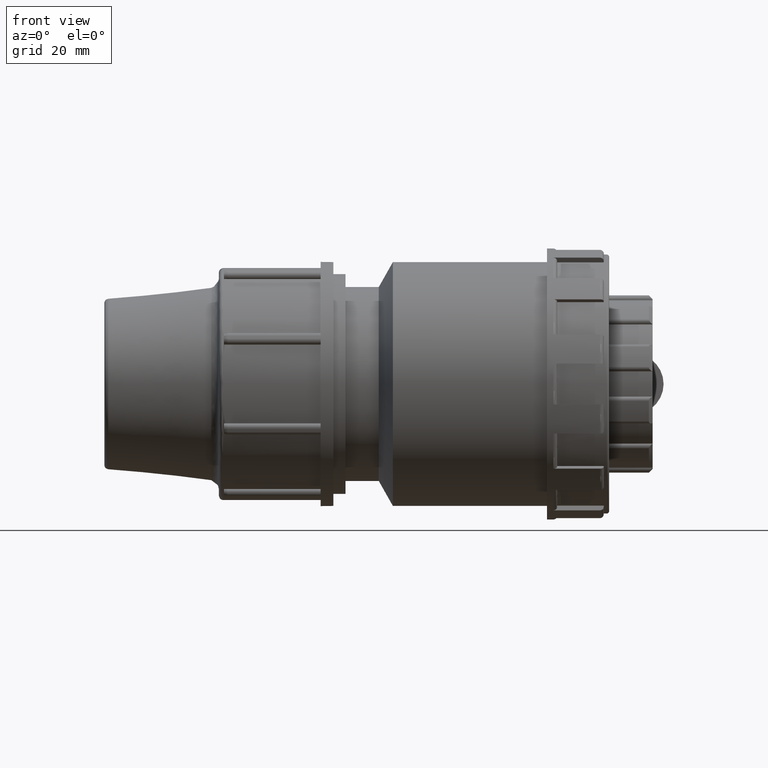
[diagram: clean part render]
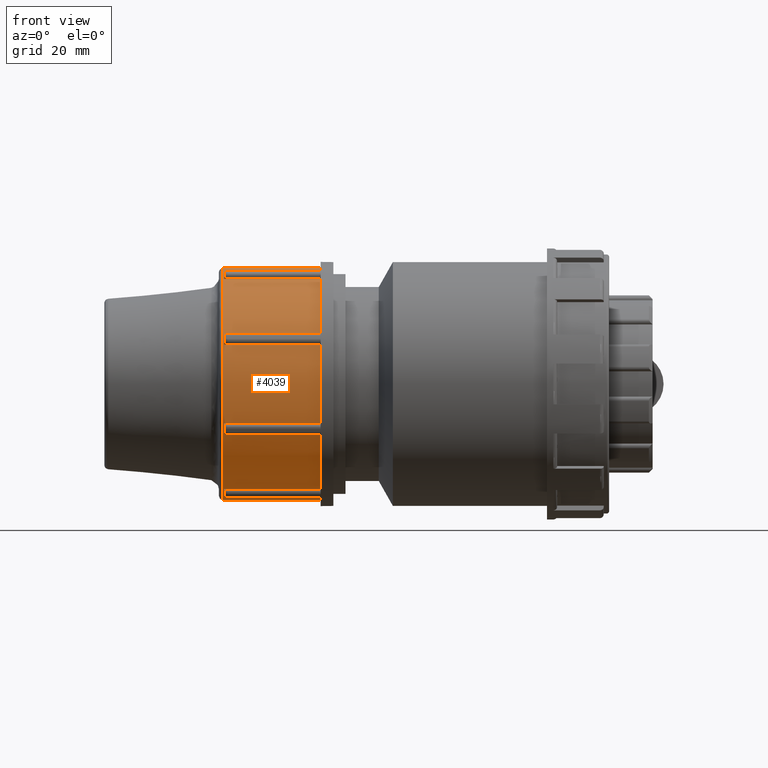
[diagram: same view with one face highlighted and labeled with its STEP entity id]
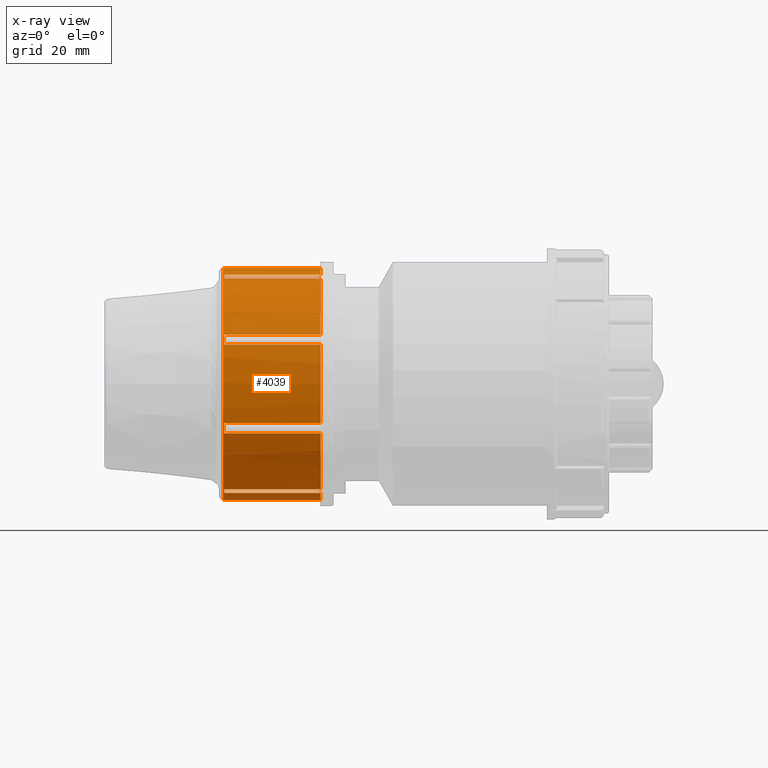
[diagram: x-ray of the same camera — body ghosted, the highlighted face saturated]
A machine part, front view. The second image highlights one B-rep face of the part: STEP entity #4039.
The next image is the same camera in x-ray: the body ghosted, the highlighted face saturated — about 0% of this face is hidden behind the body in this view.
In plain terms, the highlighted cylindrical surface (bore or boss wall) has radius 41.04 mm, axis along (1, 0, 0).
Its self-contained STEP definition (entity closure, byte-faithful):
#34=FACE_BOUND('',#668,.T.);
#210=B_SPLINE_CURVE_WITH_KNOTS('',3,(#6009,#6010,#6011,#6012,#6013,#6014),
 .UNSPECIFIED.,.F.,.F.,(4,2,4),(0.270252021531221,0.285666484748359,0.349287406534324),
 .UNSPECIFIED.);
#212=B_SPLINE_CURVE_WITH_KNOTS('',3,(#6058,#6059,#6060,#6061,#6062,#6063),
 .UNSPECIFIED.,.F.,.F.,(4,2,4),(0.,0.0556875629541235,0.0570756095935353),
 .UNSPECIFIED.);
#218=B_SPLINE_CURVE_WITH_KNOTS('',3,(#6144,#6145,#6146,#6147,#6148,#6149),
 .UNSPECIFIED.,.F.,.F.,(4,2,4),(0.270024967553399,0.28617237268081,0.348517857314572),
 .UNSPECIFIED.);
#220=B_SPLINE_CURVE_WITH_KNOTS('',3,(#6193,#6194,#6195,#6196,#6197,#6198),
 .UNSPECIFIED.,.F.,.F.,(4,2,4),(0.,0.0595941332321903,0.0612710042508019),
 .UNSPECIFIED.);
#226=B_SPLINE_CURVE_WITH_KNOTS('',3,(#6277,#6278,#6279,#6280,#6281,#6282),
 .UNSPECIFIED.,.F.,.F.,(4,2,4),(0.254289294767043,0.271257564767877,0.320130871396279),
 .UNSPECIFIED.);
#228=B_SPLINE_CURVE_WITH_KNOTS('',3,(#6326,#6327,#6328,#6329,#6330,#6331),
 .UNSPECIFIED.,.F.,.F.,(4,2,4),(0.,0.0556875629542089,0.0570756095936359),
 .UNSPECIFIED.);
#234=B_SPLINE_CURVE_WITH_KNOTS('',3,(#6412,#6413,#6414,#6415,#6416,#6417),
 .UNSPECIFIED.,.F.,.F.,(4,2,4),(0.270024967553478,0.286172372680958,0.348517857315129),
 .UNSPECIFIED.);
#236=B_SPLINE_CURVE_WITH_KNOTS('',3,(#6461,#6462,#6463,#6464,#6465,#6466),
 .UNSPECIFIED.,.F.,.F.,(4,2,4),(0.,0.059594133232262,0.0612710042508333),
 .UNSPECIFIED.);
#242=B_SPLINE_CURVE_WITH_KNOTS('',3,(#6545,#6546,#6547,#6548,#6549,#6550),
 .UNSPECIFIED.,.F.,.F.,(4,2,4),(0.254289294767165,0.271257564768007,0.320130871396367),
 .UNSPECIFIED.);
#244=B_SPLINE_CURVE_WITH_KNOTS('',3,(#6594,#6595,#6596,#6597,#6598,#6599),
 .UNSPECIFIED.,.F.,.F.,(4,2,4),(0.,0.0556875629541828,0.0570756095935919),
 .UNSPECIFIED.);
#250=B_SPLINE_CURVE_WITH_KNOTS('',3,(#6680,#6681,#6682,#6683,#6684,#6685),
 .UNSPECIFIED.,.F.,.F.,(4,2,4),(0.270024967553261,0.286172372680583,0.348517857314121),
 .UNSPECIFIED.);
#252=B_SPLINE_CURVE_WITH_KNOTS('',3,(#6729,#6730,#6731,#6732,#6733,#6734),
 .UNSPECIFIED.,.F.,.F.,(4,2,4),(0.,0.0595941332321728,0.0612710042508062),
 .UNSPECIFIED.);
#258=B_SPLINE_CURVE_WITH_KNOTS('',3,(#6813,#6814,#6815,#6816,#6817,#6818),
 .UNSPECIFIED.,.F.,.F.,(4,2,4),(0.254289294766208,0.271257564766852,0.320130871394691),
 .UNSPECIFIED.);
#260=B_SPLINE_CURVE_WITH_KNOTS('',3,(#6862,#6863,#6864,#6865,#6866,#6867),
 .UNSPECIFIED.,.F.,.F.,(4,2,4),(0.,0.0556869005654556,0.0570756308532231),
 .UNSPECIFIED.);
#265=B_SPLINE_CURVE_WITH_KNOTS('',3,(#6964,#6965,#6966,#6967,#6968,#6969),
 .UNSPECIFIED.,.F.,.F.,(4,2,4),(0.254053845148254,0.272263457028971,0.319621782903266),
 .UNSPECIFIED.);
#266=B_SPLINE_CURVE_WITH_KNOTS('',3,(#6977,#6978,#6979,#6980,#6981,#6982),
 .UNSPECIFIED.,.F.,.F.,(4,2,4),(0.,0.0407208175615254,0.0592135322917831),
 .UNSPECIFIED.);
#419=FACE_OUTER_BOUND('',#667,.T.);
#667=EDGE_LOOP('',(#2928));
#668=EDGE_LOOP('',(#2929,#2930,#2931,#2932,#2933,#2934,#2935,#2936,#2937,
#2938,#2939,#2940,#2941,#2942,#2943,#2944,#2945,#2946,#2947,#2948,#2949,
#2950,#2951,#2952,#2953,#2954,#2955,#2956,#2957,#2958,#2959,#2960,#2961,
#2962,#2963,#2964,#2965,#2966,#2967,#2968,#2969,#2970,#2971,#2972,#2973,
#2974,#2975,#2976));
#889=LINE('',#6018,#1117);
#895=LINE('',#6153,#1123);
#901=LINE('',#6286,#1129);
#907=LINE('',#6421,#1135);
#913=LINE('',#6554,#1141);
#919=LINE('',#6689,#1147);
#925=LINE('',#6822,#1153);
#928=LINE('',#6913,#1156);
#930=LINE('',#6920,#1158);
#932=LINE('',#6927,#1160);
#934=LINE('',#6934,#1162);
#936=LINE('',#6941,#1164);
#938=LINE('',#6948,#1166);
#940=LINE('',#6955,#1168);
#942=LINE('',#6971,#1170);
#943=LINE('',#6975,#1171);
#1117=VECTOR('',#4737,33.6046665047877);
#1123=VECTOR('',#4767,33.6046665048017);
#1129=VECTOR('',#4797,33.6046665048071);
#1135=VECTOR('',#4827,33.6046665048018);
#1141=VECTOR('',#4857,33.6046665048071);
#1147=VECTOR('',#4887,33.6046665048017);
#1153=VECTOR('',#4917,33.6046665048071);
#1156=VECTOR('',#4938,33.6046665611855);
#1158=VECTOR('',#4948,33.6046665611782);
#1160=VECTOR('',#4958,33.6046665611855);
#1162=VECTOR('',#4968,33.6046665611782);
#1164=VECTOR('',#4978,33.6046665611855);
#1166=VECTOR('',#4988,33.6046665611782);
#1168=VECTOR('',#4998,33.6046665611855);
#1170=VECTOR('',#5010,33.6046665048419);
#1171=VECTOR('',#5013,33.6046665612469);
#1347=CIRCLE('',#4235,41.04);
#1354=CIRCLE('',#4247,41.04);
#1361=CIRCLE('',#4259,41.04);
#1368=CIRCLE('',#4271,41.04);
#1375=CIRCLE('',#4283,41.04);
#1382=CIRCLE('',#4295,41.04);
#1389=CIRCLE('',#4307,41.04);
#1391=CIRCLE('',#4312,41.04);
#1393=CIRCLE('',#4316,41.04);
#1395=CIRCLE('',#4320,41.04);
#1397=CIRCLE('',#4324,41.04);
#1399=CIRCLE('',#4328,41.04);
#1401=CIRCLE('',#4332,41.04);
#1403=CIRCLE('',#4336,41.04);
#1405=CIRCLE('',#4339,41.04);
#1406=CIRCLE('',#4340,41.04);
#1407=CIRCLE('',#4341,41.04);
#1612=VERTEX_POINT('',#5984);
#1614=VERTEX_POINT('',#6004);
#1615=VERTEX_POINT('',#6016);
#1617=VERTEX_POINT('',#6044);
#1618=VERTEX_POINT('',#6057);
#1624=VERTEX_POINT('',#6084);
#1629=VERTEX_POINT('',#6139);
#1630=VERTEX_POINT('',#6151);
#1632=VERTEX_POINT('',#6179);
#1633=VERTEX_POINT('',#6192);
#1639=VERTEX_POINT('',#6219);
#1644=VERTEX_POINT('',#6272);
#1645=VERTEX_POINT('',#6284);
#1647=VERTEX_POINT('',#6312);
#1648=VERTEX_POINT('',#6325);
#1654=VERTEX_POINT('',#6352);
#1659=VERTEX_POINT('',#6407);
#1660=VERTEX_POINT('',#6419);
#1662=VERTEX_POINT('',#6447);
#1663=VERTEX_POINT('',#6460);
#1669=VERTEX_POINT('',#6487);
#1674=VERTEX_POINT('',#6540);
#1675=VERTEX_POINT('',#6552);
#1677=VERTEX_POINT('',#6580);
#1678=VERTEX_POINT('',#6593);
#1684=VERTEX_POINT('',#6620);
#1689=VERTEX_POINT('',#6675);
#1690=VERTEX_POINT('',#6687);
#1692=VERTEX_POINT('',#6715);
#1693=VERTEX_POINT('',#6728);
#1699=VERTEX_POINT('',#6755);
#1704=VERTEX_POINT('',#6808);
#1705=VERTEX_POINT('',#6820);
#1707=VERTEX_POINT('',#6848);
#1708=VERTEX_POINT('',#6861);
#1714=VERTEX_POINT('',#6888);
#1716=VERTEX_POINT('',#6912);
#1717=VERTEX_POINT('',#6919);
#1718=VERTEX_POINT('',#6926);
#1719=VERTEX_POINT('',#6933);
#1720=VERTEX_POINT('',#6940);
#1721=VERTEX_POINT('',#6947);
#1722=VERTEX_POINT('',#6954);
#1723=VERTEX_POINT('',#6961);
#1724=VERTEX_POINT('',#6963);
#1725=VERTEX_POINT('',#6970);
#1726=VERTEX_POINT('',#6972);
#1727=VERTEX_POINT('',#6974);
#1728=VERTEX_POINT('',#6976);
#2028=EDGE_CURVE('',#1614,#1612,#210,.F.);
#2030=EDGE_CURVE('',#1614,#1615,#889,.T.);
#2032=EDGE_CURVE('',#1618,#1617,#212,.T.);
#2041=EDGE_CURVE('',#1617,#1624,#1347,.T.);
#2049=EDGE_CURVE('',#1629,#1624,#218,.F.);
#2051=EDGE_CURVE('',#1629,#1630,#895,.T.);
#2053=EDGE_CURVE('',#1633,#1632,#220,.T.);
#2062=EDGE_CURVE('',#1632,#1639,#1354,.T.);
#2070=EDGE_CURVE('',#1644,#1639,#226,.F.);
#2072=EDGE_CURVE('',#1644,#1645,#901,.T.);
#2074=EDGE_CURVE('',#1648,#1647,#228,.T.);
#2083=EDGE_CURVE('',#1647,#1654,#1361,.T.);
#2091=EDGE_CURVE('',#1659,#1654,#234,.F.);
#2093=EDGE_CURVE('',#1659,#1660,#907,.T.);
#2095=EDGE_CURVE('',#1663,#1662,#236,.T.);
#2104=EDGE_CURVE('',#1662,#1669,#1368,.T.);
#2112=EDGE_CURVE('',#1674,#1669,#242,.F.);
#2114=EDGE_CURVE('',#1674,#1675,#913,.T.);
#2116=EDGE_CURVE('',#1678,#1677,#244,.T.);
#2125=EDGE_CURVE('',#1677,#1684,#1375,.T.);
#2133=EDGE_CURVE('',#1689,#1684,#250,.F.);
#2135=EDGE_CURVE('',#1689,#1690,#919,.T.);
#2137=EDGE_CURVE('',#1693,#1692,#252,.T.);
#2146=EDGE_CURVE('',#1692,#1699,#1382,.T.);
#2154=EDGE_CURVE('',#1704,#1699,#258,.F.);
#2156=EDGE_CURVE('',#1704,#1705,#925,.T.);
#2158=EDGE_CURVE('',#1708,#1707,#260,.T.);
#2167=EDGE_CURVE('',#1707,#1714,#1389,.T.);
#2170=EDGE_CURVE('',#1618,#1716,#928,.T.);
#2172=EDGE_CURVE('',#1615,#1716,#1391,.T.);
#2174=EDGE_CURVE('',#1633,#1717,#930,.T.);
#2176=EDGE_CURVE('',#1630,#1717,#1393,.T.);
#2178=EDGE_CURVE('',#1648,#1718,#932,.T.);
#2180=EDGE_CURVE('',#1645,#1718,#1395,.T.);
#2182=EDGE_CURVE('',#1663,#1719,#934,.T.);
#2184=EDGE_CURVE('',#1660,#1719,#1397,.T.);
#2186=EDGE_CURVE('',#1678,#1720,#936,.T.);
#2188=EDGE_CURVE('',#1675,#1720,#1399,.T.);
#2190=EDGE_CURVE('',#1693,#1721,#938,.T.);
#2192=EDGE_CURVE('',#1690,#1721,#1401,.T.);
#2194=EDGE_CURVE('',#1708,#1722,#940,.T.);
#2196=EDGE_CURVE('',#1705,#1722,#1403,.T.);
#2198=EDGE_CURVE('',#1723,#1723,#1405,.T.);
#2199=EDGE_CURVE('',#1724,#1714,#265,.F.);
#2200=EDGE_CURVE('',#1724,#1725,#942,.T.);
#2201=EDGE_CURVE('',#1725,#1726,#1406,.T.);
#2202=EDGE_CURVE('',#1727,#1726,#943,.T.);
#2203=EDGE_CURVE('',#1727,#1728,#266,.T.);
#2204=EDGE_CURVE('',#1728,#1612,#1407,.T.);
#2928=ORIENTED_EDGE('',*,*,#2198,.F.);
#2929=ORIENTED_EDGE('',*,*,#2041,.T.);
#2930=ORIENTED_EDGE('',*,*,#2049,.F.);
#2931=ORIENTED_EDGE('',*,*,#2051,.T.);
#2932=ORIENTED_EDGE('',*,*,#2176,.T.);
#2933=ORIENTED_EDGE('',*,*,#2174,.F.);
#2934=ORIENTED_EDGE('',*,*,#2053,.T.);
#2935=ORIENTED_EDGE('',*,*,#2062,.T.);
#2936=ORIENTED_EDGE('',*,*,#2070,.F.);
#2937=ORIENTED_EDGE('',*,*,#2072,.T.);
#2938=ORIENTED_EDGE('',*,*,#2180,.T.);
#2939=ORIENTED_EDGE('',*,*,#2178,.F.);
#2940=ORIENTED_EDGE('',*,*,#2074,.T.);
#2941=ORIENTED_EDGE('',*,*,#2083,.T.);
#2942=ORIENTED_EDGE('',*,*,#2091,.F.);
#2943=ORIENTED_EDGE('',*,*,#2093,.T.);
#2944=ORIENTED_EDGE('',*,*,#2184,.T.);
#2945=ORIENTED_EDGE('',*,*,#2182,.F.);
#2946=ORIENTED_EDGE('',*,*,#2095,.T.);
#2947=ORIENTED_EDGE('',*,*,#2104,.T.);
#2948=ORIENTED_EDGE('',*,*,#2112,.F.);
#2949=ORIENTED_EDGE('',*,*,#2114,.T.);
#2950=ORIENTED_EDGE('',*,*,#2188,.T.);
#2951=ORIENTED_EDGE('',*,*,#2186,.F.);
#2952=ORIENTED_EDGE('',*,*,#2116,.T.);
#2953=ORIENTED_EDGE('',*,*,#2125,.T.);
#2954=ORIENTED_EDGE('',*,*,#2133,.F.);
#2955=ORIENTED_EDGE('',*,*,#2135,.T.);
#2956=ORIENTED_EDGE('',*,*,#2192,.T.);
#2957=ORIENTED_EDGE('',*,*,#2190,.F.);
#2958=ORIENTED_EDGE('',*,*,#2137,.T.);
#2959=ORIENTED_EDGE('',*,*,#2146,.T.);
#2960=ORIENTED_EDGE('',*,*,#2154,.F.);
#2961=ORIENTED_EDGE('',*,*,#2156,.T.);
#2962=ORIENTED_EDGE('',*,*,#2196,.T.);
#2963=ORIENTED_EDGE('',*,*,#2194,.F.);
#2964=ORIENTED_EDGE('',*,*,#2158,.T.);
#2965=ORIENTED_EDGE('',*,*,#2167,.T.);
#2966=ORIENTED_EDGE('',*,*,#2199,.F.);
#2967=ORIENTED_EDGE('',*,*,#2200,.T.);
#2968=ORIENTED_EDGE('',*,*,#2201,.T.);
#2969=ORIENTED_EDGE('',*,*,#2202,.F.);
#2970=ORIENTED_EDGE('',*,*,#2203,.T.);
#2971=ORIENTED_EDGE('',*,*,#2204,.T.);
#2972=ORIENTED_EDGE('',*,*,#2028,.F.);
#2973=ORIENTED_EDGE('',*,*,#2030,.T.);
#2974=ORIENTED_EDGE('',*,*,#2172,.T.);
#2975=ORIENTED_EDGE('',*,*,#2170,.F.);
#2976=ORIENTED_EDGE('',*,*,#2032,.T.);
#3916=CYLINDRICAL_SURFACE('',#4338,41.04);
#4039=ADVANCED_FACE('',(#419,#34),#3916,.T.);
#4235=AXIS2_PLACEMENT_3D('',#6099,#4750,#4751);
#4247=AXIS2_PLACEMENT_3D('',#6232,#4780,#4781);
#4259=AXIS2_PLACEMENT_3D('',#6367,#4810,#4811);
#4271=AXIS2_PLACEMENT_3D('',#6500,#4840,#4841);
#4283=AXIS2_PLACEMENT_3D('',#6635,#4870,#4871);
#4295=AXIS2_PLACEMENT_3D('',#6768,#4900,#4901);
#4307=AXIS2_PLACEMENT_3D('',#6903,#4930,#4931);
#4312=AXIS2_PLACEMENT_3D('',#6916,#4942,#4943);
#4316=AXIS2_PLACEMENT_3D('',#6923,#4952,#4953);
#4320=AXIS2_PLACEMENT_3D('',#6930,#4962,#4963);
#4324=AXIS2_PLACEMENT_3D('',#6937,#4972,#4973);
#4328=AXIS2_PLACEMENT_3D('',#6944,#4982,#4983);
#4332=AXIS2_PLACEMENT_3D('',#6951,#4992,#4993);
#4336=AXIS2_PLACEMENT_3D('',#6958,#5002,#5003);
#4338=AXIS2_PLACEMENT_3D('',#6960,#5006,#5007);
#4339=AXIS2_PLACEMENT_3D('',#6962,#5008,#5009);
#4340=AXIS2_PLACEMENT_3D('',#6973,#5011,#5012);
#4341=AXIS2_PLACEMENT_3D('',#6983,#5014,#5015);
#4737=DIRECTION('',(1.,0.,0.));
#4750=DIRECTION('center_axis',(-1.,0.,0.));
#4751=DIRECTION('ref_axis',(0.,0.,-1.));
#4767=DIRECTION('',(1.,0.,0.));
#4780=DIRECTION('center_axis',(-1.,0.,0.));
#4781=DIRECTION('ref_axis',(0.,0.,-1.));
#4797=DIRECTION('',(1.,0.,0.));
#4810=DIRECTION('center_axis',(-1.,0.,0.));
#4811=DIRECTION('ref_axis',(0.,0.,-1.));
#4827=DIRECTION('',(1.,0.,0.));
#4840=DIRECTION('center_axis',(-1.,0.,0.));
#4841=DIRECTION('ref_axis',(0.,0.,-1.));
#4857=DIRECTION('',(1.,0.,0.));
#4870=DIRECTION('center_axis',(-1.,0.,0.));
#4871=DIRECTION('ref_axis',(0.,0.,-1.));
#4887=DIRECTION('',(1.,0.,0.));
#4900=DIRECTION('center_axis',(-1.,0.,0.));
#4901=DIRECTION('ref_axis',(0.,0.,-1.));
#4917=DIRECTION('',(1.,0.,0.));
#4930=DIRECTION('center_axis',(-1.,0.,0.));
#4931=DIRECTION('ref_axis',(0.,0.,-1.));
#4938=DIRECTION('',(1.,0.,0.));
#4942=DIRECTION('center_axis',(-1.,0.,0.));
#4943=DIRECTION('ref_axis',(0.,-0.707106781186548,-0.707106781186547));
#4948=DIRECTION('',(1.,0.,0.));
#4952=DIRECTION('center_axis',(-1.,0.,0.));
#4953=DIRECTION('ref_axis',(0.,-1.,2.16417743591648E-16));
#4958=DIRECTION('',(1.,0.,0.));
#4962=DIRECTION('center_axis',(-1.,0.,0.));
#4963=DIRECTION('ref_axis',(0.,-0.707106781186547,0.707106781186548));
#4968=DIRECTION('',(1.,0.,0.));
#4972=DIRECTION('center_axis',(-1.,0.,0.));
#4973=DIRECTION('ref_axis',(0.,2.16417743591648E-16,1.));
#4978=DIRECTION('',(1.,0.,0.));
#4982=DIRECTION('center_axis',(-1.,0.,0.));
#4983=DIRECTION('ref_axis',(0.,0.707106781186548,0.707106781186547));
#4988=DIRECTION('',(1.,0.,0.));
#4992=DIRECTION('center_axis',(-1.,0.,0.));
#4993=DIRECTION('ref_axis',(0.,1.,0.));
#4998=DIRECTION('',(1.,0.,0.));
#5002=DIRECTION('center_axis',(-1.,0.,0.));
#5003=DIRECTION('ref_axis',(0.,0.707106781186547,-0.707106781186548));
#5006=DIRECTION('center_axis',(1.,0.,0.));
#5007=DIRECTION('ref_axis',(0.,0.,-1.));
#5008=DIRECTION('center_axis',(-1.,0.,0.));
#5009=DIRECTION('ref_axis',(0.,0.940721029240064,0.339181286549708));
#5010=DIRECTION('',(1.,0.,0.));
#5011=DIRECTION('center_axis',(-1.,0.,0.));
#5012=DIRECTION('ref_axis',(0.,0.,-1.));
#5013=DIRECTION('',(1.,0.,0.));
#5014=DIRECTION('center_axis',(-1.,0.,0.));
#5015=DIRECTION('ref_axis',(0.,0.,-1.));
#5984=CARTESIAN_POINT('',(-87.0333333333334,37.1586650213684,-17.4216880304331));
#6004=CARTESIAN_POINT('',(-86.4379998381211,37.1423329809637,-17.4564801927302));
#6009=CARTESIAN_POINT('Ctrl Pts',(-87.0333333333334,37.1586650213684,-17.4216880304331));
#6010=CARTESIAN_POINT('Ctrl Pts',(-86.9921485865194,37.1559985110736,-17.4273754220708));
#6011=CARTESIAN_POINT('Ctrl Pts',(-86.9521998777933,37.1538075171609,-17.4320453540696));
#6012=CARTESIAN_POINT('Ctrl Pts',(-86.7549185541998,37.1445019033375,-17.4518735159925));
#6013=CARTESIAN_POINT('Ctrl Pts',(-86.599493453676,37.1423329810739,-17.4564801928404));
#6014=CARTESIAN_POINT('Ctrl Pts',(-86.4379998374639,37.1423329810739,-17.4564801928404));
#6016=CARTESIAN_POINT('',(-52.8333333333334,37.1423329810739,-17.4564801928404));
#6018=CARTESIAN_POINT('',(-88.8333333333334,37.1423329810739,-17.4564801928404));
#6044=CARTESIAN_POINT('',(-87.0333333333334,17.4216880304331,-37.1586650213684));
#6057=CARTESIAN_POINT('',(-86.4379998945188,17.4564801832725,-37.1423329715059));
#6058=CARTESIAN_POINT('Ctrl Pts',(-86.4379998945188,17.4564801928404,-37.1423329810739));
#6059=CARTESIAN_POINT('Ctrl Pts',(-86.6236251043659,17.4564801915929,-37.1423329816602));
#6060=CARTESIAN_POINT('Ctrl Pts',(-86.8176814308472,17.4504284645355,-37.1451883224252));
#6061=CARTESIAN_POINT('Ctrl Pts',(-87.0232232619913,17.4230713159363,-37.1580164494249));
#6062=CARTESIAN_POINT('Ctrl Pts',(-87.0282597988944,17.4223886582037,-37.1583365349053));
#6063=CARTESIAN_POINT('Ctrl Pts',(-87.0333333333333,17.4216880304331,-37.1586650213684));
#6084=CARTESIAN_POINT('',(-87.0333333333334,13.9561502704132,-38.5941377624847));
#6099=CARTESIAN_POINT('Origin',(-87.0333333333334,0.,0.));
#6139=CARTESIAN_POINT('',(-86.4379998381351,13.92,-38.607191039853));
#6144=CARTESIAN_POINT('Ctrl Pts',(-87.0333333333334,13.9561502704132,-38.5941377624847));
#6145=CARTESIAN_POINT('Ctrl Pts',(-86.9898702827425,13.9499163941196,-38.5963920145386));
#6146=CARTESIAN_POINT('Ctrl Pts',(-86.9477223449924,13.9448494438052,-38.5982226728267));
#6147=CARTESIAN_POINT('Ctrl Pts',(-86.7505363448343,13.9246541690976,-38.6055164081321));
#6148=CARTESIAN_POINT('Ctrl Pts',(-86.5971701580888,13.92,-38.6071910400122));
#6149=CARTESIAN_POINT('Ctrl Pts',(-86.4379998374639,13.92,-38.6071910400122));
#6151=CARTESIAN_POINT('',(-52.8333333333334,13.92,-38.6071910400122));
#6153=CARTESIAN_POINT('',(-88.8333333333334,13.92,-38.6071910400122));
#6179=CARTESIAN_POINT('',(-87.0333333333334,-13.9561502704132,-38.5941377624847));
#6192=CARTESIAN_POINT('',(-86.4379998945115,-13.92,-38.6071910264828));
#6193=CARTESIAN_POINT('Ctrl Pts',(-86.4379998945115,-13.92,-38.6071910400122));
#6194=CARTESIAN_POINT('Ctrl Pts',(-86.6366470052855,-13.9200000013875,-38.607191039512));
#6195=CARTESIAN_POINT('Ctrl Pts',(-86.8239429421501,-13.927250417033,-38.6045864544689));
#6196=CARTESIAN_POINT('Ctrl Pts',(-87.0223415126307,-13.9545894987774,-38.5947021306503));
#6197=CARTESIAN_POINT('Ctrl Pts',(-87.0278157564595,-13.9553588880503,-38.5944239368059));
#6198=CARTESIAN_POINT('Ctrl Pts',(-87.0333333333334,-13.9561502704132,-38.5941377624847));
#6219=CARTESIAN_POINT('',(-87.0333333333334,-17.4216880304331,-37.1586650213684));
#6232=CARTESIAN_POINT('Origin',(-87.0333333333334,0.,0.));
#6272=CARTESIAN_POINT('',(-86.4379998381405,-17.456480192727,-37.1423329809605));
#6277=CARTESIAN_POINT('Ctrl Pts',(-87.0333333333335,-17.4216880304331,-37.1586650213684));
#6278=CARTESIAN_POINT('Ctrl Pts',(-86.9786831767403,-17.4292349226117,-37.1551266918547));
#6279=CARTESIAN_POINT('Ctrl Pts',(-86.9257901003047,-17.4350482134609,-37.1523985606639));
#6280=CARTESIAN_POINT('Ctrl Pts',(-86.7291644151997,-17.4526164169504,-37.1441514607129));
#6281=CARTESIAN_POINT('Ctrl Pts',(-86.5858946637742,-17.4564801928404,-37.1423329810739));
#6282=CARTESIAN_POINT('Ctrl Pts',(-86.4379998374639,-17.4564801928404,-37.1423329810739));
#6284=CARTESIAN_POINT('',(-52.8333333333334,-17.4564801928404,-37.1423329810739));
#6286=CARTESIAN_POINT('',(-88.8333333333334,-17.4564801928404,-37.1423329810739));
#6312=CARTESIAN_POINT('',(-87.0333333333334,-37.1586650213684,-17.4216880304331));
#6325=CARTESIAN_POINT('',(-86.4379998945188,-37.1423329715059,-17.4564801832725));
#6326=CARTESIAN_POINT('Ctrl Pts',(-86.4379998945188,-37.1423329810739,-17.4564801928404));
#6327=CARTESIAN_POINT('Ctrl Pts',(-86.6236251043662,-37.1423329816602,-17.4564801915929));
#6328=CARTESIAN_POINT('Ctrl Pts',(-86.8176814308473,-37.1451883224252,-17.4504284645355));
#6329=CARTESIAN_POINT('Ctrl Pts',(-87.0232232619912,-37.1580164494249,-17.4230713159363));
#6330=CARTESIAN_POINT('Ctrl Pts',(-87.0282597988944,-37.1583365349053,-17.4223886582037));
#6331=CARTESIAN_POINT('Ctrl Pts',(-87.0333333333334,-37.1586650213684,-17.4216880304331));
#6352=CARTESIAN_POINT('',(-87.0333333333334,-38.5941377624847,-13.9561502704132));
#6367=CARTESIAN_POINT('Origin',(-87.0333333333334,0.,0.));
#6407=CARTESIAN_POINT('',(-86.4379998381351,-38.607191039853,-13.92));
#6412=CARTESIAN_POINT('Ctrl Pts',(-87.0333333333334,-38.5941377624847,-13.9561502704132));
#6413=CARTESIAN_POINT('Ctrl Pts',(-86.9898702827425,-38.5963920145386,-13.9499163941196));
#6414=CARTESIAN_POINT('Ctrl Pts',(-86.9477223449925,-38.5982226728267,-13.9448494438052));
#6415=CARTESIAN_POINT('Ctrl Pts',(-86.7505363448344,-38.6055164081321,-13.9246541690976));
#6416=CARTESIAN_POINT('Ctrl Pts',(-86.5971701580889,-38.6071910400122,-13.92));
#6417=CARTESIAN_POINT('Ctrl Pts',(-86.4379998374639,-38.6071910400122,-13.92));
#6419=CARTESIAN_POINT('',(-52.8333333333334,-38.6071910400122,-13.92));
#6421=CARTESIAN_POINT('',(-88.8333333333334,-38.6071910400122,-13.92));
#6447=CARTESIAN_POINT('',(-87.0333333333334,-38.5941377624847,13.9561502704132));
#6460=CARTESIAN_POINT('',(-86.4379998945115,-38.6071910264828,13.92));
#6461=CARTESIAN_POINT('Ctrl Pts',(-86.4379998945115,-38.6071910400122,13.92));
#6462=CARTESIAN_POINT('Ctrl Pts',(-86.6366470052857,-38.607191039512,13.9200000013875));
#6463=CARTESIAN_POINT('Ctrl Pts',(-86.8239429421504,-38.6045864544689,13.927250417033));
#6464=CARTESIAN_POINT('Ctrl Pts',(-87.022341512631,-38.5947021306503,13.9545894987774));
#6465=CARTESIAN_POINT('Ctrl Pts',(-87.0278157564596,-38.5944239368059,13.9553588880503));
#6466=CARTESIAN_POINT('Ctrl Pts',(-87.0333333333334,-38.5941377624847,13.9561502704132));
#6487=CARTESIAN_POINT('',(-87.0333333333334,-37.1586650213684,17.4216880304331));
#6500=CARTESIAN_POINT('Origin',(-87.0333333333334,0.,0.));
#6540=CARTESIAN_POINT('',(-86.4379998381404,-37.1423329809605,17.456480192727));
#6545=CARTESIAN_POINT('Ctrl Pts',(-87.0333333333334,-37.1586650213684,17.4216880304331));
#6546=CARTESIAN_POINT('Ctrl Pts',(-86.9786831767403,-37.1551266918547,17.4292349226117));
#6547=CARTESIAN_POINT('Ctrl Pts',(-86.9257901003046,-37.1523985606639,17.4350482134609));
#6548=CARTESIAN_POINT('Ctrl Pts',(-86.7291644151996,-37.1441514607129,17.4526164169504));
#6549=CARTESIAN_POINT('Ctrl Pts',(-86.5858946637742,-37.1423329810739,17.4564801928404));
#6550=CARTESIAN_POINT('Ctrl Pts',(-86.4379998374638,-37.1423329810739,17.4564801928404));
#6552=CARTESIAN_POINT('',(-52.8333333333334,-37.1423329810739,17.4564801928404));
#6554=CARTESIAN_POINT('',(-88.8333333333334,-37.1423329810739,17.4564801928404));
#6580=CARTESIAN_POINT('',(-87.0333333333334,-17.4216880304331,37.1586650213684));
#6593=CARTESIAN_POINT('',(-86.4379998945188,-17.4564801832725,37.1423329715059));
#6594=CARTESIAN_POINT('Ctrl Pts',(-86.4379998945188,-17.4564801928404,37.1423329810739));
#6595=CARTESIAN_POINT('Ctrl Pts',(-86.6236251043661,-17.4564801915929,37.1423329816602));
#6596=CARTESIAN_POINT('Ctrl Pts',(-86.8176814308473,-17.4504284645355,37.1451883224252));
#6597=CARTESIAN_POINT('Ctrl Pts',(-87.0232232619913,-17.4230713159363,37.1580164494249));
#6598=CARTESIAN_POINT('Ctrl Pts',(-87.0282597988945,-17.4223886582037,37.1583365349053));
#6599=CARTESIAN_POINT('Ctrl Pts',(-87.0333333333334,-17.4216880304331,37.1586650213684));
#6620=CARTESIAN_POINT('',(-87.0333333333334,-13.9561502704132,38.5941377624847));
#6635=CARTESIAN_POINT('Origin',(-87.0333333333334,0.,0.));
#6675=CARTESIAN_POINT('',(-86.4379998381351,-13.92,38.607191039853));
#6680=CARTESIAN_POINT('Ctrl Pts',(-87.0333333333334,-13.9561502704132,38.5941377624847));
#6681=CARTESIAN_POINT('Ctrl Pts',(-86.9898702827426,-13.9499163941196,38.5963920145386));
#6682=CARTESIAN_POINT('Ctrl Pts',(-86.9477223449926,-13.9448494438052,38.5982226728266));
#6683=CARTESIAN_POINT('Ctrl Pts',(-86.7505363448345,-13.9246541690976,38.6055164081321));
#6684=CARTESIAN_POINT('Ctrl Pts',(-86.5971701580889,-13.92,38.6071910400122));
#6685=CARTESIAN_POINT('Ctrl Pts',(-86.4379998374639,-13.92,38.6071910400122));
#6687=CARTESIAN_POINT('',(-52.8333333333334,-13.92,38.6071910400122));
#6689=CARTESIAN_POINT('',(-88.8333333333334,-13.92,38.6071910400122));
#6715=CARTESIAN_POINT('',(-87.0333333333334,13.9561502704132,38.5941377624847));
#6728=CARTESIAN_POINT('',(-86.4379998945115,13.92,38.6071910264828));
#6729=CARTESIAN_POINT('Ctrl Pts',(-86.4379998945115,13.92,38.6071910400122));
#6730=CARTESIAN_POINT('Ctrl Pts',(-86.6366470052854,13.9200000013875,38.607191039512));
#6731=CARTESIAN_POINT('Ctrl Pts',(-86.82394294215,13.927250417033,38.6045864544689));
#6732=CARTESIAN_POINT('Ctrl Pts',(-87.0223415126306,13.9545894987773,38.5947021306503));
#6733=CARTESIAN_POINT('Ctrl Pts',(-87.0278157564594,13.9553588880503,38.5944239368059));
#6734=CARTESIAN_POINT('Ctrl Pts',(-87.0333333333334,13.9561502704131,38.5941377624847));
#6755=CARTESIAN_POINT('',(-87.0333333333334,17.4216880304331,37.1586650213684));
#6768=CARTESIAN_POINT('Origin',(-87.0333333333334,0.,0.));
#6808=CARTESIAN_POINT('',(-86.4379998381404,17.456480192727,37.1423329809605));
#6813=CARTESIAN_POINT('Ctrl Pts',(-87.0333333333334,17.4216880304331,37.1586650213684));
#6814=CARTESIAN_POINT('Ctrl Pts',(-86.9786831767403,17.4292349226117,37.1551266918547));
#6815=CARTESIAN_POINT('Ctrl Pts',(-86.9257901003047,17.4350482134609,37.1523985606639));
#6816=CARTESIAN_POINT('Ctrl Pts',(-86.7291644151997,17.4526164169504,37.1441514607129));
#6817=CARTESIAN_POINT('Ctrl Pts',(-86.5858946637742,17.4564801928404,37.1423329810739));
#6818=CARTESIAN_POINT('Ctrl Pts',(-86.4379998374639,17.4564801928404,37.1423329810739));
#6820=CARTESIAN_POINT('',(-52.8333333333334,17.4564801928404,37.1423329810739));
#6822=CARTESIAN_POINT('',(-88.8333333333334,17.4564801928404,37.1423329810739));
#6848=CARTESIAN_POINT('',(-87.0333333333334,37.1586650213684,17.4216880304331));
#6861=CARTESIAN_POINT('',(-86.4379998945189,37.1423329715059,17.4564801832724));
#6862=CARTESIAN_POINT('Ctrl Pts',(-86.4379998945189,37.1423329810739,17.4564801928404));
#6863=CARTESIAN_POINT('Ctrl Pts',(-86.6236228964037,37.1423329816602,17.4564801915929));
#6864=CARTESIAN_POINT('Ctrl Pts',(-86.8176766692494,37.1451882549545,17.4504286065656));
#6865=CARTESIAN_POINT('Ctrl Pts',(-87.0232182485468,37.1580161308053,17.4230719954677));
#6866=CARTESIAN_POINT('Ctrl Pts',(-87.0282572750084,37.1583363714961,17.4223890067388));
#6867=CARTESIAN_POINT('Ctrl Pts',(-87.0333333333333,37.1586650213683,17.4216880304331));
#6888=CARTESIAN_POINT('',(-87.0333333333334,38.5941377624847,13.9561502704132));
#6903=CARTESIAN_POINT('Origin',(-87.0333333333334,0.,0.));
#6912=CARTESIAN_POINT('',(-52.8333333333334,17.4564801928404,-37.1423329810739));
#6913=CARTESIAN_POINT('',(-88.8333333333334,17.4564801928404,-37.1423329810739));
#6916=CARTESIAN_POINT('Origin',(-52.8333333333334,0.,0.));
#6919=CARTESIAN_POINT('',(-52.8333333333334,-13.92,-38.6071910400122));
#6920=CARTESIAN_POINT('',(-88.8333333333334,-13.92,-38.6071910400122));
#6923=CARTESIAN_POINT('Origin',(-52.8333333333334,0.,0.));
#6926=CARTESIAN_POINT('',(-52.8333333333334,-37.1423329810739,-17.4564801928404));
#6927=CARTESIAN_POINT('',(-88.8333333333334,-37.1423329810739,-17.4564801928404));
#6930=CARTESIAN_POINT('Origin',(-52.8333333333334,0.,0.));
#6933=CARTESIAN_POINT('',(-52.8333333333334,-38.6071910400122,13.92));
#6934=CARTESIAN_POINT('',(-88.8333333333334,-38.6071910400122,13.92));
#6937=CARTESIAN_POINT('Origin',(-52.8333333333334,0.,0.));
#6940=CARTESIAN_POINT('',(-52.8333333333334,-17.4564801928404,37.1423329810739));
#6941=CARTESIAN_POINT('',(-88.8333333333334,-17.4564801928404,37.1423329810739));
#6944=CARTESIAN_POINT('Origin',(-52.8333333333334,0.,0.));
#6947=CARTESIAN_POINT('',(-52.8333333333334,13.92,38.6071910400122));
#6948=CARTESIAN_POINT('',(-88.8333333333334,13.92,38.6071910400122));
#6951=CARTESIAN_POINT('Origin',(-52.8333333333334,0.,0.));
#6954=CARTESIAN_POINT('',(-52.8333333333334,37.1423329810739,17.4564801928404));
#6955=CARTESIAN_POINT('',(-88.8333333333334,37.1423329810739,17.4564801928404));
#6958=CARTESIAN_POINT('Origin',(-52.8333333333334,0.,0.));
#6960=CARTESIAN_POINT('Origin',(-88.8333333333334,0.,0.));
#6961=CARTESIAN_POINT('',(-87.3333333333334,17.4564801928404,-37.1423329810739));
#6962=CARTESIAN_POINT('Origin',(-87.3333333333334,0.,0.));
#6963=CARTESIAN_POINT('',(-86.4379998381752,38.6071910398435,13.92));
#6964=CARTESIAN_POINT('Ctrl Pts',(-87.0333333333335,38.5941377624847,13.9561502704132));
#6965=CARTESIAN_POINT('Ctrl Pts',(-86.9742910461164,38.5972000463193,13.9476818746242));
#6966=CARTESIAN_POINT('Ctrl Pts',(-86.9172231620214,38.5995042479238,13.941301896341));
#6967=CARTESIAN_POINT('Ctrl Pts',(-86.7208837878332,38.6058283725119,13.9237852829884));
#6968=CARTESIAN_POINT('Ctrl Pts',(-86.5815496066316,38.6071910400122,13.92));
#6969=CARTESIAN_POINT('Ctrl Pts',(-86.4379998374639,38.6071910400122,13.92));
#6970=CARTESIAN_POINT('',(-52.8333333333334,38.6071910400122,13.92));
#6971=CARTESIAN_POINT('',(-88.8333333333334,38.6071910400122,13.92));
#6972=CARTESIAN_POINT('',(-52.8333333333334,38.6071910400122,-13.92));
#6973=CARTESIAN_POINT('Origin',(-52.8333333333334,0.,0.));
#6974=CARTESIAN_POINT('',(-86.4379998945803,38.6071910264665,-13.92));
#6975=CARTESIAN_POINT('',(-88.8333333333334,38.6071910400122,-13.92));
#6976=CARTESIAN_POINT('',(-87.0333333333334,38.5941377624847,-13.9561502704131));
#6977=CARTESIAN_POINT('Ctrl Pts',(-86.4379998945803,38.6071910400122,-13.92));
#6978=CARTESIAN_POINT('Ctrl Pts',(-86.5737359531187,38.60719103967,-13.9200000009492));
#6979=CARTESIAN_POINT('Ctrl Pts',(-86.7059322993759,38.6059724470637,-13.9233843324039));
#6980=CARTESIAN_POINT('Ctrl Pts',(-86.9012613922314,38.6001336690247,-13.9395591600328));
#6981=CARTESIAN_POINT('Ctrl Pts',(-86.9659210953628,38.5976341616983,-13.9464813781824));
#6982=CARTESIAN_POINT('Ctrl Pts',(-87.033333333332,38.5941377624848,-13.9561502704129));
#6983=CARTESIAN_POINT('Origin',(-87.0333333333334,0.,0.));